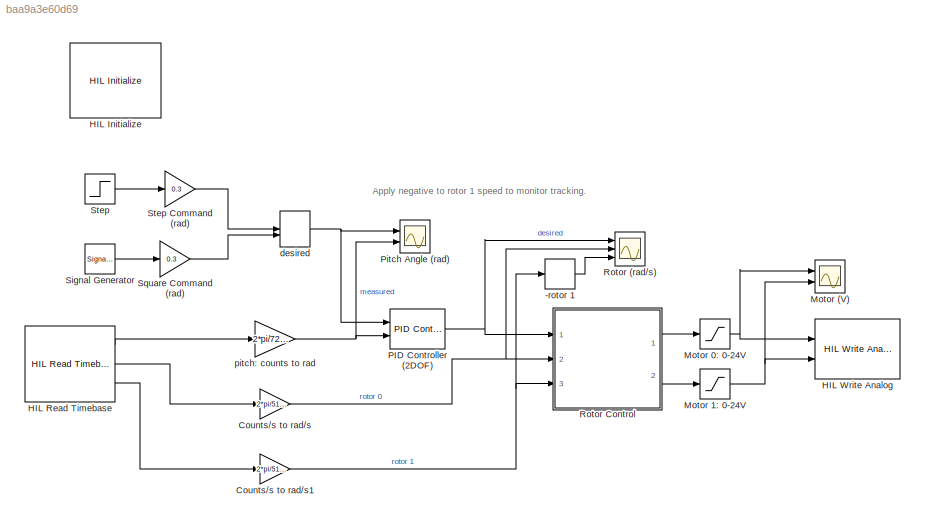
MODEL slx_baa9a3e60d69
KIND model
CONFIG AbsTol = auto
CONFIG EnableMultiTasking = off
CONFIG FixedStep = 0.002
CONFIG MaxStep = auto
CONFIG MinStep = auto
CONFIG RelTol = 1e-3
CONFIG SampleTimeConstraint = Unconstrained
CONFIG SolverName = ode1
CONFIG StartTime = 0.0
CONFIG StopTime = 15
BLOCK [UnaryMinus] -rotor 1
BLOCK [Gain] Counts//s to rad//s
  Gain = 2*pi/512/4
BLOCK [Gain] Counts//s to rad//s1
  Gain = 2*pi/512/4
BLOCK [Reference] HIL Initialize  REF=quarc_library/Data Acquisition/Generic/Configuration/HIL Initialize
  AttributesFormatString = %<object_name> (%<board_type>-%<board_number>)
  Ports = []
  Priority = -99
  SourceBlock = quarc_library/Data Acquisition/Generic/Configuration/HIL Initialize
  SourceProductName = QUARC Targets
  SourceType = HIL Initialize
  UserDataPersistent = on
BLOCK [Reference] HIL Read Timebase  REF=quarc_library/Data Acquisition/Generic/Timebases/HIL Read
Timebase
  AttributesFormatString = (%<object_name>)
  Ports = [0, 3]
  SourceBlock = quarc_library/Data Acquisition/Generic/Timebases/HIL Read\nTimebase
  SourceProductName = QUARC Targets
  SourceType = HIL Read Timebase
  UserDataPersistent = on
BLOCK [Reference] HIL Write Analog  REF=quarc_library/Data Acquisition/Generic/Immediate I//O/HIL Write Analog
  AttributesFormatString = (%<object_name>)
  Ports = [2]
  SourceBlock = quarc_library/Data Acquisition/Generic/Immediate I//O/HIL Write Analog
  SourceProductName = QUARC Targets
  SourceType = HIL Write Analog
  UserDataPersistent = on
BLOCK [Scope] Motor (V)
  Floating = off
  NumInputPorts = 2
  Ports = [2]
  ScopeSpecificationString = Simulink.scopes.TimeScopeBlockCfg('CurrentConfiguration', extmgr.ConfigurationSet(extmgr.Configuration('Core','General UI',true),extmgr.Configuration('Core','Source UI',true),extmgr.Configuration('Sources','WiredSimulink',true,'DataLogging',true,'DataLoggingVariableName','DataPitchPIDVm','DataLoggingMaxPoints','20000','DataLoggingSaveFormat','StructureWithTime','DataLoggingDecimation','1','DataLog...<+1797ch>
BLOCK [Saturate] Motor 0: 0-24V
  LowerLimit = 0
  UpperLimit = 24
BLOCK [Saturate] Motor 1: 0-24V
  LowerLimit = 0
  UpperLimit = 24
BLOCK [Reference] PID Controller (2DOF)  REF=slpidlib/PID Controller (2DOF)
  Ports = [2, 1]
  SourceBlock = slpidlib/PID Controller (2DOF)
  SourceProductBaseCode = SL
  SourceType = PID 2dof
BLOCK [Scope] Pitch Angle (rad)
  Floating = off
  NumInputPorts = 2
  Ports = [2]
  ScopeSpecificationString = Simulink.scopes.TimeScopeBlockCfg('CurrentConfiguration', extmgr.ConfigurationSet(extmgr.Configuration('Core','General UI',true),extmgr.Configuration('Core','Source UI',true),extmgr.Configuration('Sources','WiredSimulink',true,'DataLogging',true,'DataLoggingVariableName','DataPitchPIDTheta','DataLoggingSaveFormat','StructureWithTime'),extmgr.Configuration('Visuals','Time Domain',true,'SerializedDi...<+1501ch>
BLOCK [Scope] Rotor (rad//s)
  Floating = off
  NumInputPorts = 3
  Ports = [3]
  ScopeSpecificationString = Simulink.scopes.TimeScopeBlockCfg('CurrentConfiguration', extmgr.ConfigurationSet(extmgr.Configuration('Core','General UI',true),extmgr.Configuration('Core','Source UI',true),extmgr.Configuration('Sources','WiredSimulink',true,'DataLoggingVariableName','DataPitchPIDRotor','DataLoggingMaxPoints','20000','DataLoggingSaveFormat','StructureWithTime','DataLoggingDecimation','1','DataLoggingDecimateData...<+1808ch>
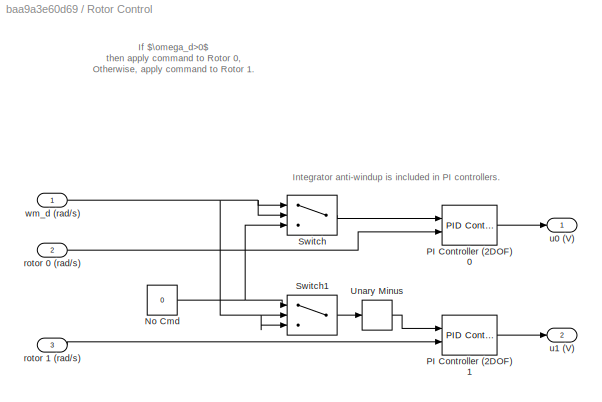
BLOCK [SubSystem] Rotor Control
  Ports = [3, 2]
  RequestExecContextInheritance = off
BLOCK [Constant] Rotor Control/No Cmd
  Value = 0
BLOCK [Reference] Rotor Control/PI Controller (2DOF) 0  REF=slpidlib/PID Controller (2DOF)
  Ports = [2, 1]
  SourceBlock = slpidlib/PID Controller (2DOF)
  SourceProductBaseCode = SL
  SourceType = PID 2dof
BLOCK [Reference] Rotor Control/PI Controller (2DOF) 1  REF=slpidlib/PID Controller (2DOF)
  Ports = [2, 1]
  SourceBlock = slpidlib/PID Controller (2DOF)
  SourceProductBaseCode = SL
  SourceType = PID 2dof
BLOCK [Switch] Rotor Control/Switch
  Criteria = u2 > Threshold
  InputSameDT = off
  SaturateOnIntegerOverflow = off
BLOCK [Switch] Rotor Control/Switch1
  Criteria = u2 > Threshold
  InputSameDT = off
  SaturateOnIntegerOverflow = off
BLOCK [UnaryMinus] Rotor Control/Unary Minus
BLOCK [Inport] Rotor Control/rotor 0 (rad//s)
  Port = 2
BLOCK [Inport] Rotor Control/rotor 1 (rad//s)
  Port = 3
BLOCK [Outport] Rotor Control/u0 (V)
BLOCK [Outport] Rotor Control/u1 (V)
  Port = 2
BLOCK [Inport] Rotor Control/wm_d (rad//s)
BLOCK [SignalGenerator] Signal Generator
  Frequency = 0.1
  Ports = [0, 1]
  WaveForm = square
BLOCK [Gain] Square Command (rad)
  Gain = 0.3
BLOCK [Step] Step
  SampleTime = 0
BLOCK [Gain] Step Command (rad)
  Gain = 0.3
BLOCK [ManualSwitch] desired
BLOCK [Gain] pitch: counts to rad
  Gain = 2*pi/720/4
ANNOTATION (root): Apply negative to rotor 1 speed to monitor tracking.
ANNOTATION Rotor Control: If $\omega_d>0$ then apply command to Rotor 0, Otherwise, apply command to Rotor 1.
ANNOTATION Rotor Control: Integrator anti-windup is included in PI controllers.
LINE -rotor 1:1 -> Rotor (rad//s):3
NET Counts//s to rad//s1:1 -> -rotor 1:1, Rotor Control:3
NET Counts//s to rad//s:1 -> Rotor (rad//s):2, Rotor Control:2
LINE HIL Read Timebase:1 -> pitch: counts to rad:1
LINE HIL Read Timebase:2 -> Counts//s to rad//s:1
LINE HIL Read Timebase:3 -> Counts//s to rad//s1:1
NET Motor 0: 0-24V:1 -> HIL Write Analog:1, Motor (V):1
NET Motor 1: 0-24V:1 -> HIL Write Analog:2, Motor (V):2
NET PID Controller (2DOF):1 -> Rotor (rad//s):1, Rotor Control:1
NET Rotor Control/No Cmd:1 -> Rotor Control/Switch1:1, Rotor Control/Switch:3
LINE Rotor Control/PI Controller (2DOF) 0:1 -> Rotor Control/u0 (V):1
LINE Rotor Control/PI Controller (2DOF) 1:1 -> Rotor Control/u1 (V):1
LINE Rotor Control/Switch1:1 -> Rotor Control/Unary Minus:1
LINE Rotor Control/Switch:1 -> Rotor Control/PI Controller (2DOF) 0:1
LINE Rotor Control/Unary Minus:1 -> Rotor Control/PI Controller (2DOF) 1:1
LINE Rotor Control/rotor 0 (rad//s):1 -> Rotor Control/PI Controller (2DOF) 0:2
LINE Rotor Control/rotor 1 (rad//s):1 -> Rotor Control/PI Controller (2DOF) 1:2
NET Rotor Control/wm_d (rad//s):1 -> Rotor Control/Switch1:2, Rotor Control/Switch1:3, Rotor Control/Switch:1, Rotor Control/Switch:2
LINE Rotor Control:1 -> Motor 0: 0-24V:1
LINE Rotor Control:2 -> Motor 1: 0-24V:1
LINE Signal Generator:1 -> Square Command (rad):1
LINE Square Command (rad):1 -> desired:2
LINE Step Command (rad):1 -> desired:1
LINE Step:1 -> Step Command (rad):1
NET desired:1 -> PID Controller (2DOF):1, Pitch Angle (rad):1
NET pitch: counts to rad:1 -> PID Controller (2DOF):2, Pitch Angle (rad):2
note: NET lines group one-source signal fan-out (src -> all destinations, sorted); 1:1 wires keep LINE
